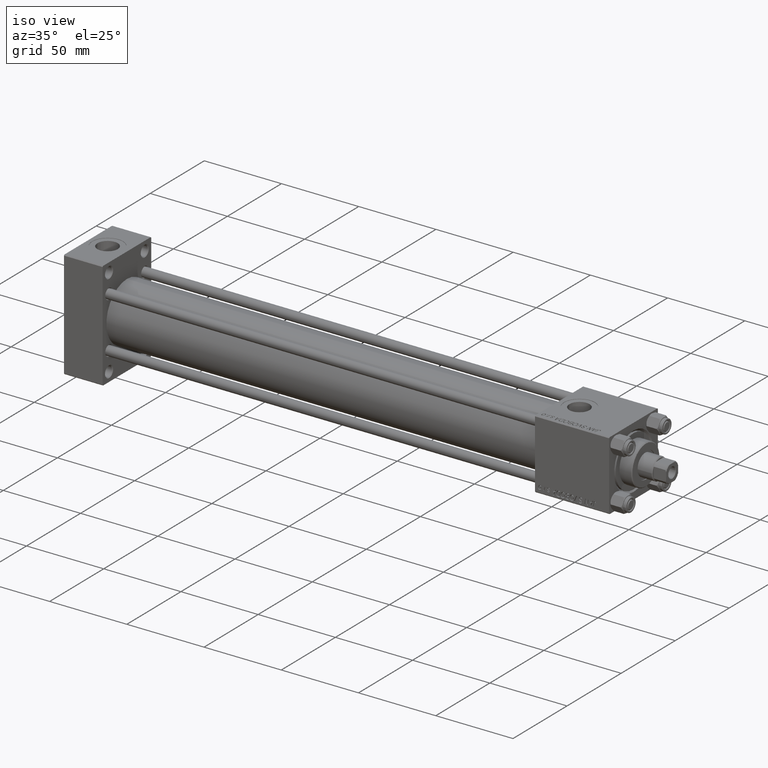
[diagram: clean part render]
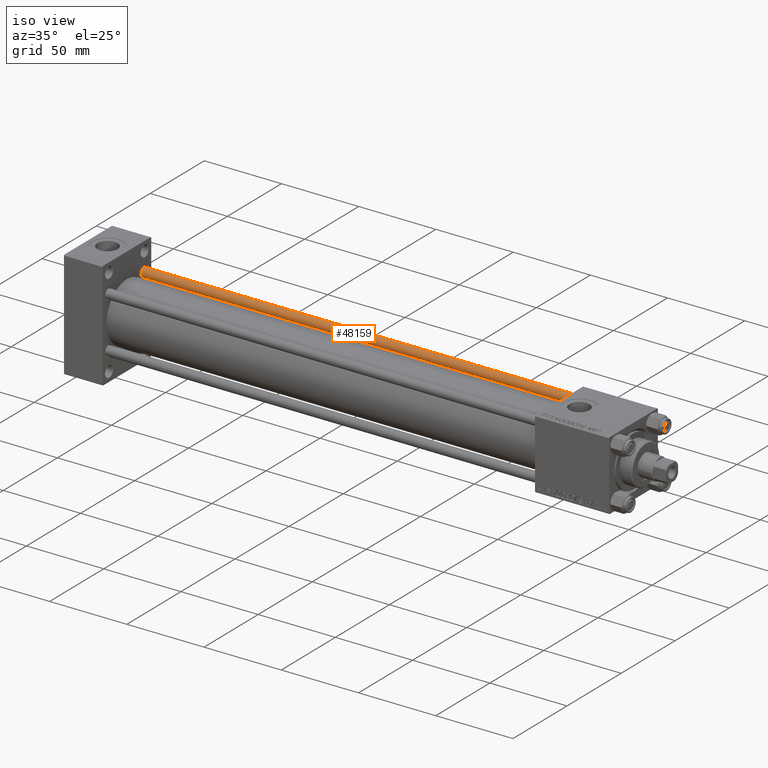
[diagram: same view with one face highlighted and labeled with its STEP entity id]
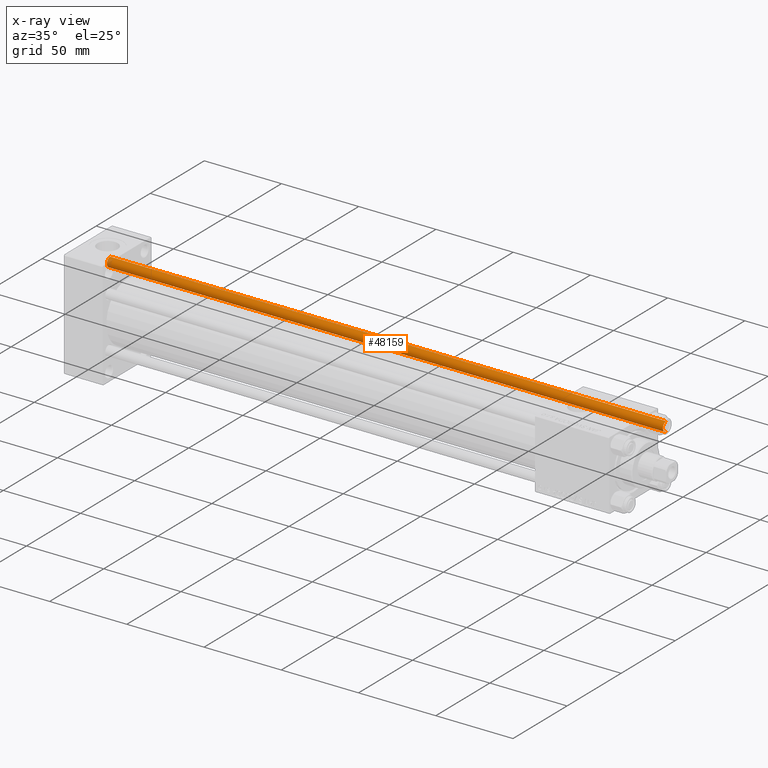
[diagram: x-ray of the same camera — body ghosted, the highlighted face saturated]
A machine part, iso view. The second image highlights one B-rep face of the part: STEP entity #48159.
The next image is the same camera in x-ray: the body ghosted, the highlighted face saturated — about 1% of this face is hidden behind the body in this view.
In plain terms, the highlighted cylindrical surface (edge-blend (fillet) strip) has radius 3 mm, axis along (1, 0, 0).
Its self-contained STEP definition (entity closure, byte-faithful):
#899 = CIRCLE ( 'NONE', #50453, 3.000000000000000444 ) ;
#952 = ORIENTED_EDGE ( 'NONE', *, *, #41633, .F. ) ;
#3870 = CARTESIAN_POINT ( 'NONE',  ( 3.000000000000000444, 3.673940397442060361E-16, 360.5000000000000000 ) ) ;
#4051 = CARTESIAN_POINT ( 'NONE',  ( 3.000000000000000444, 3.673940397442060361E-16, 361.0000000000000000 ) ) ;
#4817 = CARTESIAN_POINT ( 'NONE',  ( -3.000000000000000444, 0.000000000000000000, 0.4999999999999449329 ) ) ;
#7190 = CARTESIAN_POINT ( 'NONE',  ( 3.000000000000000444, 3.673940397442060361E-16, 0.4999999999999449329 ) ) ;
#8209 = CARTESIAN_POINT ( 'NONE',  ( -3.000000000000000444, 0.000000000000000000, 360.5000000000000000 ) ) ;
#8248 = DIRECTION ( 'NONE',  ( -0.000000000000000000, -0.000000000000000000, -1.000000000000000000 ) ) ;
#12188 = EDGE_CURVE ( 'NONE', #34638, #43231, #36394, .T. ) ;
#16316 = VECTOR ( 'NONE', #8248, 1000.000000000000000 ) ;
#16781 = LINE ( 'NONE', #21004, #39616 ) ;
#18262 = FACE_OUTER_BOUND ( 'NONE', #25304, .T. ) ;
#18829 = DIRECTION ( 'NONE',  ( 1.000000000000000000, 0.000000000000000000, 0.000000000000000000 ) ) ;
#21004 = CARTESIAN_POINT ( 'NONE',  ( -3.000000000000000444, 0.000000000000000000, 361.0000000000000000 ) ) ;
#21058 = ORIENTED_EDGE ( 'NONE', *, *, #38648, .T. ) ;
#21132 = CARTESIAN_POINT ( 'NONE',  ( 0.000000000000000000, 0.000000000000000000, 0.4999999999999449329 ) ) ;
#21679 = CYLINDRICAL_SURFACE ( 'NONE', #46555, 3.000000000000000444 ) ;
#25304 = EDGE_LOOP ( 'NONE', ( #21058, #47598, #32601, #952 ) ) ;
#25326 = DIRECTION ( 'NONE',  ( 1.000000000000000000, 0.000000000000000000, 0.000000000000000000 ) ) ;
#29562 = DIRECTION ( 'NONE',  ( -0.000000000000000000, -0.000000000000000000, -1.000000000000000000 ) ) ;
#30081 = DIRECTION ( 'NONE',  ( -0.000000000000000000, -0.000000000000000000, 1.000000000000000000 ) ) ;
#30475 = DIRECTION ( 'NONE',  ( -0.000000000000000000, -0.000000000000000000, -1.000000000000000000 ) ) ;
#32601 = ORIENTED_EDGE ( 'NONE', *, *, #39450, .T. ) ;
#32799 = AXIS2_PLACEMENT_3D ( 'NONE', #34339, #50335, #18829 ) ;
#34041 = CARTESIAN_POINT ( 'NONE',  ( 0.000000000000000000, 0.000000000000000000, 361.0000000000000000 ) ) ;
#34339 = CARTESIAN_POINT ( 'NONE',  ( 0.000000000000000000, 0.000000000000000000, 360.5000000000000000 ) ) ;
#34638 = VERTEX_POINT ( 'NONE', #3870 ) ;
#36394 = LINE ( 'NONE', #4051, #16316 ) ;
#38648 = EDGE_CURVE ( 'NONE', #45291, #34638, #48818, .T. ) ;
#39450 = EDGE_CURVE ( 'NONE', #43231, #41344, #899, .T. ) ;
#39616 = VECTOR ( 'NONE', #30475, 1000.000000000000000 ) ;
#41344 = VERTEX_POINT ( 'NONE', #4817 ) ;
#41371 = DIRECTION ( 'NONE',  ( -1.000000000000000000, 0.000000000000000000, 0.000000000000000000 ) ) ;
#41633 = EDGE_CURVE ( 'NONE', #45291, #41344, #16781, .T. ) ;
#43231 = VERTEX_POINT ( 'NONE', #7190 ) ;
#45291 = VERTEX_POINT ( 'NONE', #8209 ) ;
#46555 = AXIS2_PLACEMENT_3D ( 'NONE', #34041, #29562, #41371 ) ;
#47598 = ORIENTED_EDGE ( 'NONE', *, *, #12188, .T. ) ;
#48159 = ADVANCED_FACE ( 'NONE', ( #18262 ), #21679, .T. ) ;
#48818 = CIRCLE ( 'NONE', #32799, 3.000000000000000444 ) ;
#50335 = DIRECTION ( 'NONE',  ( 0.000000000000000000, 0.000000000000000000, -1.000000000000000000 ) ) ;
#50453 = AXIS2_PLACEMENT_3D ( 'NONE', #21132, #30081, #25326 ) ;